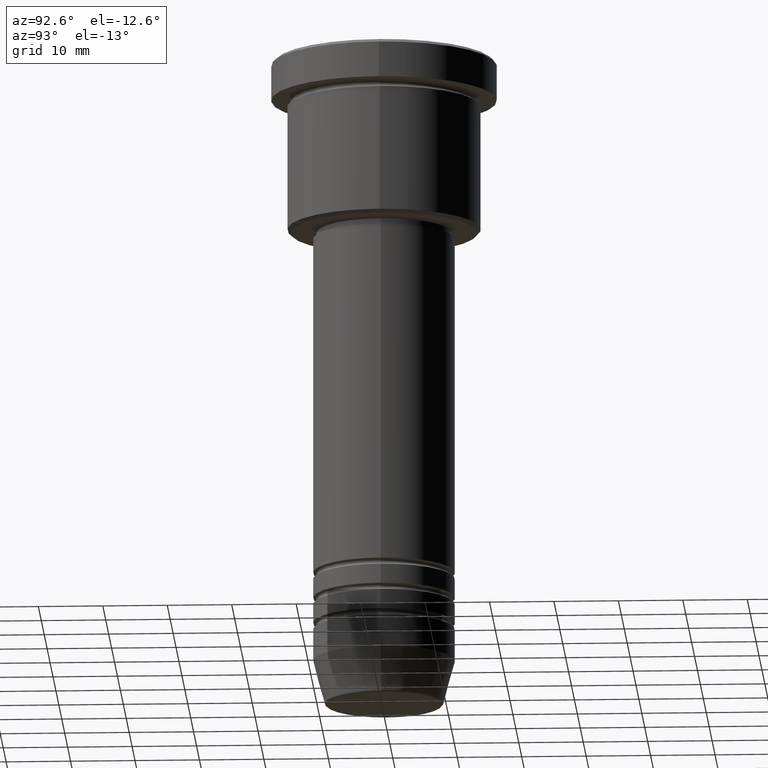
[diagram: clean part render]
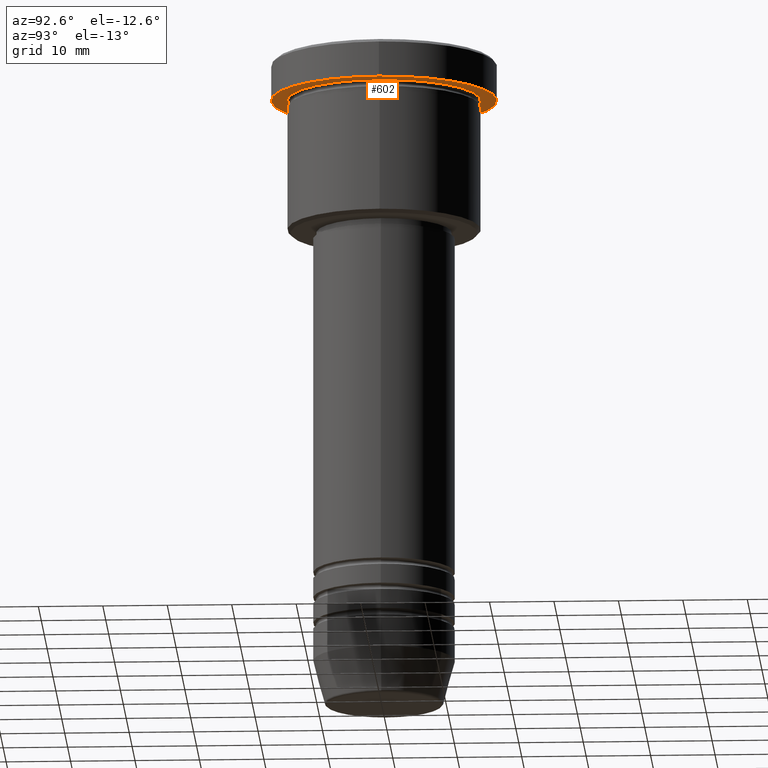
[diagram: same view with one face highlighted and labeled with its STEP entity id]
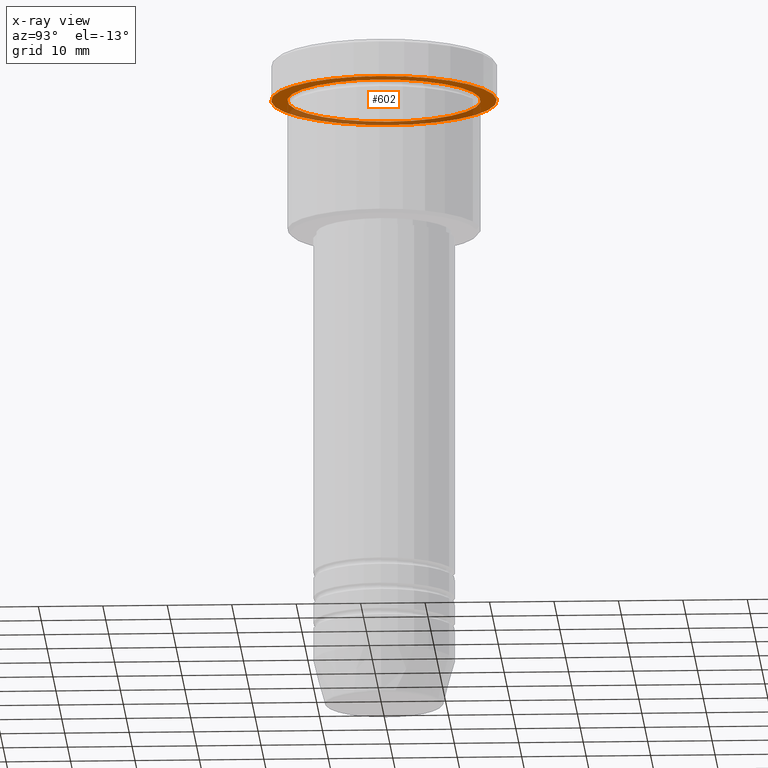
[diagram: x-ray of the same camera — body ghosted, the highlighted face saturated]
A machine part, auxiliary view. The second image highlights one B-rep face of the part: STEP entity #602.
The next image is the same camera in x-ray: the body ghosted, the highlighted face saturated — about 35% of this face is hidden behind the body in this view.
In plain terms, the highlighted planar face has unit normal (0, 0, -1).
Its self-contained STEP definition (entity closure, byte-faithful):
#4 = EDGE_CURVE ( 'NONE', #531, #1063, #292, .T. ) ;
#71 = ORIENTED_EDGE ( 'NONE', *, *, #947, .F. ) ;
#154 = DIRECTION ( 'NONE',  ( -0.000000000000000000, -0.000000000000000000, 1.000000000000000000 ) ) ;
#161 = DIRECTION ( 'NONE',  ( 1.000000000000000000, 0.000000000000000000, 0.000000000000000000 ) ) ;
#191 = CARTESIAN_POINT ( 'NONE',  ( 15.00000000000000000, 1.836970198721029589E-15, -5.999999999999994671 ) ) ;
#224 = DIRECTION ( 'NONE',  ( -0.000000000000000000, -0.000000000000000000, 1.000000000000000000 ) ) ;
#232 = FACE_OUTER_BOUND ( 'NONE', #994, .T. ) ;
#262 = CIRCLE ( 'NONE', #414, 17.50000000000000000 ) ;
#274 = CARTESIAN_POINT ( 'NONE',  ( 17.50000000000000000, 0.000000000000000000, -5.999999999999995559 ) ) ;
#292 = CIRCLE ( 'NONE', #335, 15.00000000000000000 ) ;
#333 = DIRECTION ( 'NONE',  ( 0.000000000000000000, 0.000000000000000000, -1.000000000000000000 ) ) ;
#335 = AXIS2_PLACEMENT_3D ( 'NONE', #442, #154, #428 ) ;
#414 = AXIS2_PLACEMENT_3D ( 'NONE', #1049, #224, #858 ) ;
#428 = DIRECTION ( 'NONE',  ( -1.000000000000000000, 0.000000000000000000, 0.000000000000000000 ) ) ;
#429 = FACE_BOUND ( 'NONE', #762, .T. ) ;
#442 = CARTESIAN_POINT ( 'NONE',  ( 0.000000000000000000, 0.000000000000000000, -5.999999999999995559 ) ) ;
#531 = VERTEX_POINT ( 'NONE', #796 ) ;
#590 = AXIS2_PLACEMENT_3D ( 'NONE', #599, #960, #790 ) ;
#594 = EDGE_CURVE ( 'NONE', #628, #769, #850, .T. ) ;
#595 = DIRECTION ( 'NONE',  ( -0.000000000000000000, -0.000000000000000000, 1.000000000000000000 ) ) ;
#599 = CARTESIAN_POINT ( 'NONE',  ( 0.000000000000000000, 0.000000000000000000, -5.999999999999995559 ) ) ;
#602 = ADVANCED_FACE ( 'NONE', ( #429, #232 ), #956, .T. ) ;
#608 = CARTESIAN_POINT ( 'NONE',  ( -17.50000000000000000, 2.143131898507868248E-15, -5.999999999999995559 ) ) ;
#628 = VERTEX_POINT ( 'NONE', #608 ) ;
#684 = ORIENTED_EDGE ( 'NONE', *, *, #594, .F. ) ;
#708 = CARTESIAN_POINT ( 'NONE',  ( 0.000000000000000000, 0.000000000000000000, -5.999999999999995559 ) ) ;
#762 = EDGE_LOOP ( 'NONE', ( #1111, #898 ) ) ;
#768 = DIRECTION ( 'NONE',  ( -1.000000000000000000, 0.000000000000000000, -0.000000000000000000 ) ) ;
#769 = VERTEX_POINT ( 'NONE', #274 ) ;
#790 = DIRECTION ( 'NONE',  ( -1.000000000000000000, 0.000000000000000000, 0.000000000000000000 ) ) ;
#796 = CARTESIAN_POINT ( 'NONE',  ( -15.00000000000000000, 0.000000000000000000, -5.999999999999994671 ) ) ;
#815 = AXIS2_PLACEMENT_3D ( 'NONE', #1149, #333, #768 ) ;
#850 = CIRCLE ( 'NONE', #925, 17.50000000000000000 ) ;
#858 = DIRECTION ( 'NONE',  ( 1.000000000000000000, 0.000000000000000000, 0.000000000000000000 ) ) ;
#898 = ORIENTED_EDGE ( 'NONE', *, *, #1017, .T. ) ;
#925 = AXIS2_PLACEMENT_3D ( 'NONE', #708, #595, #161 ) ;
#947 = EDGE_CURVE ( 'NONE', #769, #628, #262, .T. ) ;
#956 = PLANE ( 'NONE',  #815 ) ;
#960 = DIRECTION ( 'NONE',  ( -0.000000000000000000, -0.000000000000000000, 1.000000000000000000 ) ) ;
#994 = EDGE_LOOP ( 'NONE', ( #71, #684 ) ) ;
#1017 = EDGE_CURVE ( 'NONE', #1063, #531, #1098, .T. ) ;
#1049 = CARTESIAN_POINT ( 'NONE',  ( 0.000000000000000000, 0.000000000000000000, -5.999999999999995559 ) ) ;
#1063 = VERTEX_POINT ( 'NONE', #191 ) ;
#1098 = CIRCLE ( 'NONE', #590, 15.00000000000000000 ) ;
#1111 = ORIENTED_EDGE ( 'NONE', *, *, #4, .T. ) ;
#1149 = CARTESIAN_POINT ( 'NONE',  ( 0.000000000000000000, 17.50000000000000000, -5.999999999999995559 ) ) ;